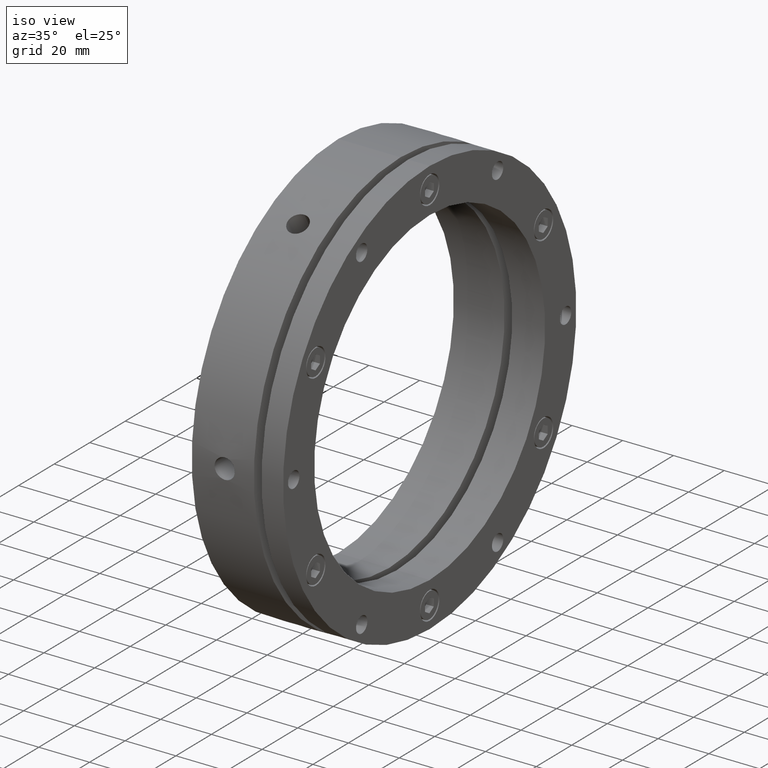
[diagram: clean part render]
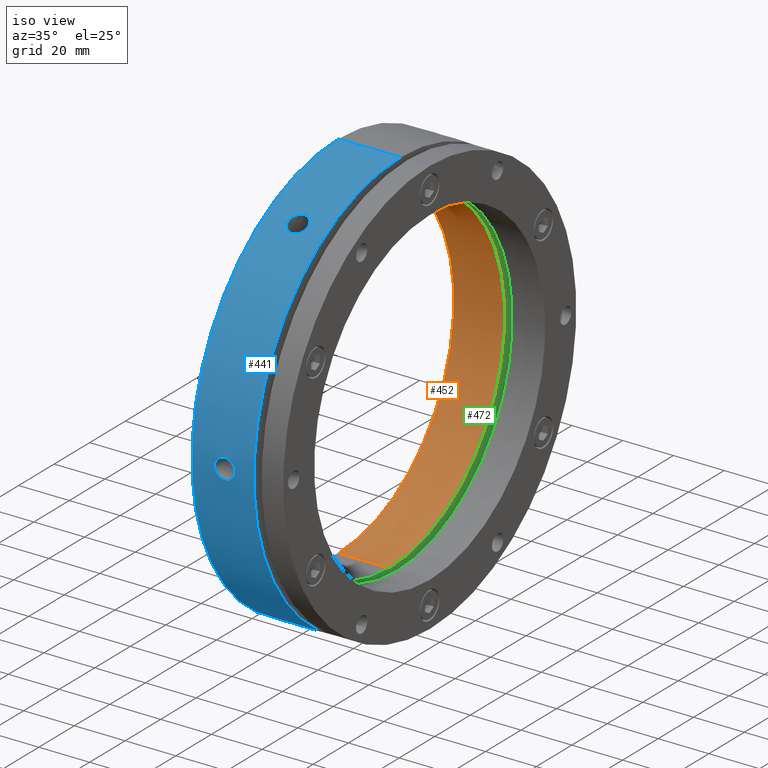
[diagram: same view with three faces highlighted in distinct colors, each labeled with its STEP entity id]
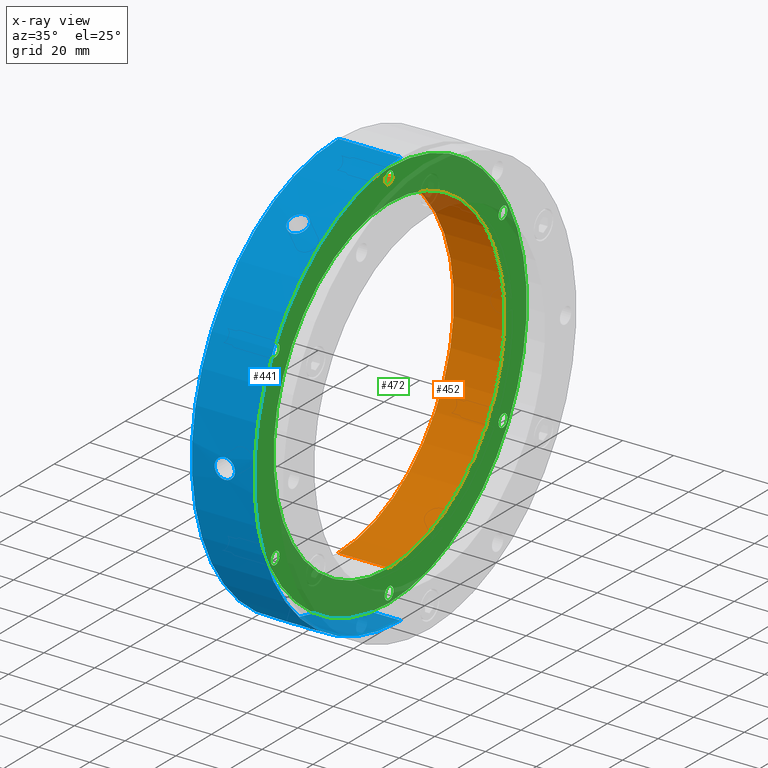
[diagram: x-ray of the same camera — body ghosted, the three highlighted faces saturated]
A machine part, iso view with three faces highlighted in distinct colors.
The next image is the same camera in x-ray (body ghosted, the three faces saturated) — at least one of them is partly hidden behind the body in this view.
Their STEP definitions:

[orange] entity #452 — the highlighted cylindrical surface (partial cylindrical patch) has radius 65 mm, axis along (1, 0, 0).
#49 = CIRCLE ( 'NONE', #2461, 65.00000000000000000 ) ;
#85 = CIRCLE ( 'NONE', #2489, 65.00000000000000000 ) ;
#158 = LINE ( 'NONE', #1758, #160 ) ;
#160 = VECTOR ( 'NONE', #1756, 1000.000000000000000 ) ;
#161 = LINE ( 'NONE', #1763, #163 ) ;
#163 = VECTOR ( 'NONE', #1759, 1000.000000000000000 ) ;
#452 = ADVANCED_FACE ( 'NONE', ( #3357 ), #3352, .F. ) ;
#1139 = CARTESIAN_POINT ( 'NONE',  ( -1.734723475976807100E-014, 0.0000000000000000000, 0.0000000000000000000 ) ) ;
#1140 = DIRECTION ( 'NONE',  ( 1.000000000000000000, 0.0000000000000000000, 0.0000000000000000000 ) ) ;
#1141 = DIRECTION ( 'NONE',  ( 0.0000000000000000000, 0.0000000000000000000, -1.000000000000000000 ) ) ;
#1267 = CARTESIAN_POINT ( 'NONE',  ( -1.734723475976807100E-014, 7.960204194457797300E-015, 65.00000000000000000 ) ) ;
#1270 = CARTESIAN_POINT ( 'NONE',  ( 19.99999999999998900, 0.0000000000000000000, -65.00000000000000000 ) ) ;
#1279 = CARTESIAN_POINT ( 'NONE',  ( 19.99999999999998900, 7.960204194457797300E-015, 65.00000000000000000 ) ) ;
#1293 = CARTESIAN_POINT ( 'NONE',  ( -1.734723475976807100E-014, 0.0000000000000000000, -65.00000000000000000 ) ) ;
#1363 = CARTESIAN_POINT ( 'NONE',  ( 19.99999999999998900, 0.0000000000000000000, 0.0000000000000000000 ) ) ;
#1364 = DIRECTION ( 'NONE',  ( -1.000000000000000000, -0.0000000000000000000, -0.0000000000000000000 ) ) ;
#1365 = DIRECTION ( 'NONE',  ( 0.0000000000000000000, 0.0000000000000000000, -1.000000000000000000 ) ) ;
#1756 = DIRECTION ( 'NONE',  ( 1.000000000000000000, 0.0000000000000000000, 0.0000000000000000000 ) ) ;
#1758 = CARTESIAN_POINT ( 'NONE',  ( 17.99999999999998600, 7.960204194457797300E-015, 65.00000000000000000 ) ) ;
#1759 = DIRECTION ( 'NONE',  ( 1.000000000000000000, 0.0000000000000000000, 0.0000000000000000000 ) ) ;
#1763 = CARTESIAN_POINT ( 'NONE',  ( 17.99999999999998600, 0.0000000000000000000, -65.00000000000000000 ) ) ;
#2461 = AXIS2_PLACEMENT_3D ( 'NONE', #1139, #1140, #1141 ) ;
#2489 = AXIS2_PLACEMENT_3D ( 'NONE', #1363, #1364, #1365 ) ;
#2896 = DIRECTION ( 'NONE',  ( 0.0000000000000000000, 0.0000000000000000000, -1.000000000000000000 ) ) ;
#2899 = DIRECTION ( 'NONE',  ( 1.000000000000000000, 0.0000000000000000000, 0.0000000000000000000 ) ) ;
#2901 = CARTESIAN_POINT ( 'NONE',  ( 17.99999999999998600, 0.0000000000000000000, 0.0000000000000000000 ) ) ;
#2993 = EDGE_CURVE ( 'NONE', #4068, #4042, #49, .T. ) ;
#3352 = CYLINDRICAL_SURFACE ( 'NONE', #3663, 65.00000000000000000 ) ;
#3357 = FACE_OUTER_BOUND ( 'NONE', #4401, .T. ) ;
#3663 = AXIS2_PLACEMENT_3D ( 'NONE', #2901, #2899, #2896 ) ;
#4042 = VERTEX_POINT ( 'NONE', #1267 ) ;
#4045 = VERTEX_POINT ( 'NONE', #1270 ) ;
#4054 = VERTEX_POINT ( 'NONE', #1279 ) ;
#4068 = VERTEX_POINT ( 'NONE', #1293 ) ;
#4206 = EDGE_CURVE ( 'NONE', #4054, #4045, #85, .T. ) ;
#4223 = ORIENTED_EDGE ( 'NONE', *, *, #2993, .F. ) ;
#4225 = ORIENTED_EDGE ( 'NONE', *, *, #4608, .F. ) ;
#4230 = ORIENTED_EDGE ( 'NONE', *, *, #4610, .T. ) ;
#4231 = ORIENTED_EDGE ( 'NONE', *, *, #4206, .F. ) ;
#4401 = EDGE_LOOP ( 'NONE', ( #4225, #4223, #4230, #4231 ) ) ;
#4608 = EDGE_CURVE ( 'NONE', #4042, #4054, #158, .T. ) ;
#4610 = EDGE_CURVE ( 'NONE', #4068, #4045, #161, .T. ) ;

[blue] entity #441 — the highlighted cylindrical surface (partial cylindrical patch) has radius 82.5 mm, axis along (1, 0, 0).
#42 = CIRCLE ( 'NONE', #3606, 82.50000000000000000 ) ;
#45 = CIRCLE ( 'NONE', #2463, 82.50000000000000000 ) ;
#122 = LINE ( 'NONE', #1606, #124 ) ;
#124 = VECTOR ( 'NONE', #1571, 1000.000000000000000 ) ;
#125 = LINE ( 'NONE', #1605, #127 ) ;
#127 = VECTOR ( 'NONE', #1604, 1000.000000000000000 ) ;
#441 = ADVANCED_FACE ( 'NONE', ( #3396, #3388, #3390, #3391 ), #3384, .T. ) ;
#1031 = CARTESIAN_POINT ( 'NONE',  ( 13.52586747911997200, -44.64362104395704700, -69.37722768999508100 ) ) ;
#1032 = CARTESIAN_POINT ( 'NONE',  ( 13.26088739101038200, -37.73738500852668700, 73.36306817955632200 ) ) ;
#1033 = CARTESIAN_POINT ( 'NONE',  ( 13.52586747911997400, -37.76063110169442900, 73.35112378598991300 ) ) ;
#1034 = CARTESIAN_POINT ( 'NONE',  ( 13.52586747911997600, -82.40425214565145500, 3.973896095994820900 ) ) ;
#1035 = CARTESIAN_POINT ( 'NONE',  ( -2.428612866367529900E-014, 0.0000000000000000000, 0.0000000000000000000 ) ) ;
#1036 = DIRECTION ( 'NONE',  ( 1.000000000000000000, 0.0000000000000000000, 0.0000000000000000000 ) ) ;
#1037 = DIRECTION ( 'NONE',  ( 0.0000000000000000000, 0.0000000000000000000, -1.000000000000000000 ) ) ;
#1038 = CARTESIAN_POINT ( 'NONE',  ( 12.99999999999998600, -37.73738500852668000, 73.36306817955630800 ) ) ;
#1039 = CARTESIAN_POINT ( 'NONE',  ( 14.03878403826417400, -37.85165367367365300, 73.30419453233307100 ) ) ;
#1040 = CARTESIAN_POINT ( 'NONE',  ( 14.28808482288021900, -37.91892314232467200, 73.26947069576506500 ) ) ;
#1041 = CARTESIAN_POINT ( 'NONE',  ( 14.77228998042611800, -38.09703930152346600, 73.17701595972108900 ) ) ;
#1042 = CARTESIAN_POINT ( 'NONE',  ( 15.00641666467783600, -38.20828548440106700, 73.11906680166271100 ) ) ;
#1043 = CARTESIAN_POINT ( 'NONE',  ( 15.43970132770177600, -38.46497928092114900, 72.98435708096506900 ) ) ;
#1044 = CARTESIAN_POINT ( 'NONE',  ( 15.64165632180189800, -38.61131840669706600, 72.90713943492842500 ) ) ;
#1045 = CARTESIAN_POINT ( 'NONE',  ( 16.01503396711840200, -38.94105820159089100, 72.73155350896709600 ) ) ;
#1046 = CARTESIAN_POINT ( 'NONE',  ( 16.18068840960625100, -39.11944729384502800, 72.63584370137128600 ) ) ;
#1047 = CARTESIAN_POINT ( 'NONE',  ( 16.47024997396227900, -39.50043612338392100, 72.42936209058052600 ) ) ;
#1048 = CARTESIAN_POINT ( 'NONE',  ( 16.59540160471279100, -39.70559565340968800, 72.31717928653455400 ) ) ;
#1049 = CARTESIAN_POINT ( 'NONE',  ( 16.79607608047037500, -40.12982664389839000, 72.08263147030298500 ) ) ;
#1050 = CARTESIAN_POINT ( 'NONE',  ( 16.87165782410273000, -40.34753630367228500, 71.96104494558929300 ) ) ;
#1051 = CARTESIAN_POINT ( 'NONE',  ( 16.97386396891283100, -40.79382279860307400, 71.70899313833271500 ) ) ;
#1052 = CARTESIAN_POINT ( 'NONE',  ( 17.00018214410179200, -41.02356243453139900, 71.57783979901677200 ) ) ;
#1053 = CARTESIAN_POINT ( 'NONE',  ( 16.99981593525871700, -41.48123831788002700, 71.31358000219066200 ) ) ;
#1054 = CARTESIAN_POINT ( 'NONE',  ( 16.97370876156826800, -41.70561246155953900, 71.18256258789341500 ) ) ;
#1055 = CARTESIAN_POINT ( 'NONE',  ( 16.87175363743378800, -42.14586722682429400, 70.92278338497475000 ) ) ;
#1056 = CARTESIAN_POINT ( 'NONE',  ( 16.79466222370711400, -42.36402007175215100, 70.79264390242916200 ) ) ;
#1057 = CARTESIAN_POINT ( 'NONE',  ( 16.59359452609553600, -42.77882803508700200, 70.54275653304463800 ) ) ;
#1058 = CARTESIAN_POINT ( 'NONE',  ( 16.47059898604408400, -42.97502912872112500, 70.42332085820329700 ) ) ;
#1059 = CARTESIAN_POINT ( 'NONE',  ( 16.18006751806962700, -43.34552932112504200, 70.19588547189478300 ) ) ;
#1060 = CARTESIAN_POINT ( 'NONE',  ( 16.01103147544243300, -43.52045307678358900, 70.08747521577726000 ) ) ;
#1061 = CARTESIAN_POINT ( 'NONE',  ( 15.64185061920910700, -43.83339677118416200, 69.89218372343684400 ) ) ;
#1062 = CARTESIAN_POINT ( 'NONE',  ( 15.44041744014144500, -43.97352100643874500, 69.80401724321122000 ) ) ;
#1063 = CARTESIAN_POINT ( 'NONE',  ( 15.00302057486554100, -44.22063805106420600, 69.64773178898944600 ) ) ;
#1064 = CARTESIAN_POINT ( 'NONE',  ( 14.77023854160540000, -44.32539240172857100, 69.58102851603388200 ) ) ;
#1065 = CARTESIAN_POINT ( 'NONE',  ( 14.28887398402855900, -44.49344490435905200, 69.47368783546116300 ) ) ;
#1066 = CARTESIAN_POINT ( 'NONE',  ( 14.03673672634487200, -44.55802610150921300, 69.43223271830223100 ) ) ;
#1067 = CARTESIAN_POINT ( 'NONE',  ( 13.52042634524121700, -44.64431745616855800, 69.37677961093392300 ) ) ;
#1068 = CARTESIAN_POINT ( 'NONE',  ( 13.26088722725592500, -44.66558823880219400, 69.36306817955629400 ) ) ;
#1069 = CARTESIAN_POINT ( 'NONE',  ( 12.99999999999998600, -44.66558823880218700, 69.36306817955630800 ) ) ;
#1070 = CARTESIAN_POINT ( 'NONE',  ( 13.26088739101038000, -82.40297324732891600, 4.000000000000027500 ) ) ;
#1071 = CARTESIAN_POINT ( 'NONE',  ( 12.99999999999998600, -82.40297324732890200, 4.000000000000028400 ) ) ;
#1072 = CARTESIAN_POINT ( 'NONE',  ( 14.03878403826417400, -82.40912150579362100, 3.871603609514591600 ) ) ;
#1073 = CARTESIAN_POINT ( 'NONE',  ( 14.28808482288022000, -82.41268451553436600, 3.795984622479714700 ) ) ;
#1074 = CARTESIAN_POINT ( 'NONE',  ( 14.77228998042611800, -82.42167444501950500, 3.595504135767052700 ) ) ;
#1075 = CARTESIAN_POINT ( 'NONE',  ( 15.00641666467783800, -82.42711209345183900, 3.470187536291822200 ) ) ;
#1076 = CARTESIAN_POINT ( 'NONE',  ( 15.43970132770177600, -82.43879695145096800, 3.180529327162732000 ) ) ;
#1077 = CARTESIAN_POINT ( 'NONE',  ( 15.64165632180188800, -82.44509407125076500, 3.015187103654862500 ) ) ;
#1078 = CARTESIAN_POINT ( 'NONE',  ( 16.01503396711839900, -82.45790209626817100, 2.641831101657478300 ) ) ;
#1079 = CARTESIAN_POINT ( 'NONE',  ( 16.18068840960624800, -82.46420951762596000, 2.439486712209450600 ) ) ;
#1080 = CARTESIAN_POINT ( 'NONE',  ( 16.47024997396227500, -82.47588561203627900, 2.006299901875288900 ) ) ;
#1081 = CARTESIAN_POINT ( 'NONE',  ( 16.59540160471279400, -82.48131221887757600, 1.772535135021523900 ) ) ;
#1082 = CARTESIAN_POINT ( 'NONE',  ( 16.79607608047036400, -82.49030334686318600, 1.287866412069880400 ) ) ;
#1083 = CARTESIAN_POINT ( 'NONE',  ( 16.87165782410273400, -82.49386115759024600, 1.038531053699556200 ) ) ;
#1084 = CARTESIAN_POINT ( 'NONE',  ( 16.97386396891283400, -82.49872113690166500, 0.5260097080953001200 ) ) ;
#1085 = CARTESIAN_POINT ( 'NONE',  ( 17.00018214410179200, -82.50000883122707800, 0.2614726774672174700 ) ) ;
#1086 = CARTESIAN_POINT ( 'NONE',  ( 16.99981593525871700, -82.49999107565102500, -0.2670161626252206500 ) ) ;
#1087 = CARTESIAN_POINT ( 'NONE',  ( 16.97370876156826800, -82.49871373837123700, -0.5268385781526897500 ) ) ;
#1088 = CARTESIAN_POINT ( 'NONE',  ( 16.87175363743378800, -82.49386573190118100, -1.037999990468451800 ) ) ;
#1089 = CARTESIAN_POINT ( 'NONE',  ( 16.79466222370711700, -82.49023805644525000, -1.291995637356609700 ) ) ;
#1090 = CARTESIAN_POINT ( 'NONE',  ( 16.59359452609554400, -82.48123322814082300, -1.776173555988961100 ) ) ;
#1091 = CARTESIAN_POINT ( 'NONE',  ( 16.47059898604408400, -82.47589944642715000, -2.005806524747064700 ) ) ;
#1092 = CARTESIAN_POINT ( 'NONE',  ( 16.18006751806962700, -82.46418472036641800, -2.440386796630115800 ) ) ;
#1093 = CARTESIAN_POINT ( 'NONE',  ( 16.01103147544243300, -82.45776056236711300, -2.646080340814571200 ) ) ;
#1094 = CARTESIAN_POINT ( 'NONE',  ( 15.64185061920910700, -82.44510501605768100, -3.014743276289840100 ) ) ;
#1095 = CARTESIAN_POINT ( 'NONE',  ( 15.44041744014144500, -82.43881272204728800, -3.180177663818985100 ) ) ;
#1096 = CARTESIAN_POINT ( 'NONE',  ( 15.00302057486553800, -82.42702407076195900, -3.472330029283654500 ) ) ;
#1097 = CARTESIAN_POINT ( 'NONE',  ( 14.77023854160540500, -82.42163451719905300, -3.596401594593729500 ) ) ;
#1098 = CARTESIAN_POINT ( 'NONE',  ( 14.28887398402855900, -82.41270101227880200, -3.795609671327635900 ) ) ;
#1099 = CARTESIAN_POINT ( 'NONE',  ( 14.03673672634487900, -82.40909042627737300, -3.872266187245951000 ) ) ;
#1100 = CARTESIAN_POINT ( 'NONE',  ( 13.52042634524121700, -82.40421230390735700, -3.974723246192049900 ) ) ;
#1101 = CARTESIAN_POINT ( 'NONE',  ( 13.26088722725592500, -82.40297324732888700, -3.999999999999972500 ) ) ;
#1102 = CARTESIAN_POINT ( 'NONE',  ( 12.99999999999998600, -82.40297324732890200, -3.999999999999971600 ) ) ;
#1103 = CARTESIAN_POINT ( 'NONE',  ( 13.26088739101038200, -44.66558823880224300, -69.36306817955627900 ) ) ;
#1104 = CARTESIAN_POINT ( 'NONE',  ( 12.99999999999998600, -44.66558823880222900, -69.36306817955627900 ) ) ;
#1105 = CARTESIAN_POINT ( 'NONE',  ( 14.03878403826416800, -44.55746783211996800, -69.43259092281850500 ) ) ;
#1106 = CARTESIAN_POINT ( 'NONE',  ( 14.28808482288021900, -44.49376137320969300, -69.47348607328534300 ) ) ;
#1107 = CARTESIAN_POINT ( 'NONE',  ( 14.77228998042611800, -44.32463514349603200, -69.58151182395403100 ) ) ;
#1108 = CARTESIAN_POINT ( 'NONE',  ( 15.00641666467783800, -44.21882660905077200, -69.64887926537089400 ) ) ;
#1109 = CARTESIAN_POINT ( 'NONE',  ( 15.43970132770177500, -43.97381767052984700, -69.80382775380231000 ) ) ;
#1110 = CARTESIAN_POINT ( 'NONE',  ( 15.64165632180188800, -43.83377566455372000, -69.89195233127354400 ) ) ;
#1111 = CARTESIAN_POINT ( 'NONE',  ( 16.01503396711838800, -43.51684389467730100, -70.08972240730962300 ) ) ;
#1112 = CARTESIAN_POINT ( 'NONE',  ( 16.18068840960624800, -43.34476222378094700, -70.19635698916184200 ) ) ;
#1113 = CARTESIAN_POINT ( 'NONE',  ( 16.47024997396227500, -42.97544948865237300, -70.42306218870524500 ) ) ;
#1114 = CARTESIAN_POINT ( 'NONE',  ( 16.59540160471279400, -42.77571656546791000, -70.54464415151304000 ) ) ;
#1115 = CARTESIAN_POINT ( 'NONE',  ( 16.79607608047036400, -42.36047670296483900, -70.79476505823312500 ) ) ;
#1116 = CARTESIAN_POINT ( 'NONE',  ( 16.87165782410273400, -42.14632485391796000, -70.92251389188973600 ) ) ;
#1117 = CARTESIAN_POINT ( 'NONE',  ( 16.97386396891283400, -41.70489833829860500, -71.18298343023740000 ) ) ;
#1118 = CARTESIAN_POINT ( 'NONE',  ( 17.00018214410179200, -41.47644639669569200, -71.31636712154956100 ) ) ;
#1119 = CARTESIAN_POINT ( 'NONE',  ( 16.99981593525872000, -41.01875275777105400, -71.58059616481587300 ) ) ;
#1120 = CARTESIAN_POINT ( 'NONE',  ( 16.97370876156826500, -40.79310127681171100, -71.70940116604609200 ) ) ;
#1121 = CARTESIAN_POINT ( 'NONE',  ( 16.87175363743379500, -40.34799850507691600, -71.96078337544321400 ) ) ;
#1122 = CARTESIAN_POINT ( 'NONE',  ( 16.79466222370711700, -40.12621798469314200, -72.08463953978575500 ) ) ;
#1123 = CARTESIAN_POINT ( 'NONE',  ( 16.59359452609554400, -39.70240519305383500, -72.31893008903360000 ) ) ;
#1124 = CARTESIAN_POINT ( 'NONE',  ( 16.47059898604408800, -39.50087031770605300, -72.42912738295035500 ) ) ;
#1125 = CARTESIAN_POINT ( 'NONE',  ( 16.18006751806963100, -39.11865539924141200, -72.63627226852490500 ) ) ;
#1126 = CARTESIAN_POINT ( 'NONE',  ( 16.01103147544243300, -38.93730748558356700, -72.73355555659183800 ) ) ;
#1127 = CARTESIAN_POINT ( 'NONE',  ( 15.64185061920911400, -38.61170824487351200, -72.90692699972669300 ) ) ;
#1128 = CARTESIAN_POINT ( 'NONE',  ( 15.44041744014145200, -38.46529171560855800, -72.98419490703020100 ) ) ;
#1129 = CARTESIAN_POINT ( 'NONE',  ( 15.00302057486554500, -38.20638601969776700, -73.12006181827311500 ) ) ;
#1130 = CARTESIAN_POINT ( 'NONE',  ( 14.77023854160540500, -38.09624211547050300, -73.17743011062762500 ) ) ;
#1131 = CARTESIAN_POINT ( 'NONE',  ( 14.28887398402856100, -37.91925610791977900, -73.26929750678880300 ) ) ;
#1132 = CARTESIAN_POINT ( 'NONE',  ( 14.03673672634487900, -37.85106432476820300, -73.30449890554817200 ) ) ;
#1133 = CARTESIAN_POINT ( 'NONE',  ( 13.52042634524121700, -37.75989484773880600, -73.35150285712597900 ) ) ;
#1134 = CARTESIAN_POINT ( 'NONE',  ( 13.26088722725592600, -37.73738500852672900, -73.36306817955629400 ) ) ;
#1135 = CARTESIAN_POINT ( 'NONE',  ( 12.99999999999998600, -37.73738500852672200, -73.36306817955629400 ) ) ;
#1136 = CARTESIAN_POINT ( 'NONE',  ( 24.49999999999998600, 0.0000000000000000000, 0.0000000000000000000 ) ) ;
#1137 = DIRECTION ( 'NONE',  ( -1.000000000000000000, -0.0000000000000000000, -0.0000000000000000000 ) ) ;
#1138 = DIRECTION ( 'NONE',  ( 0.0000000000000000000, 0.0000000000000000000, -1.000000000000000000 ) ) ;
#1273 = CARTESIAN_POINT ( 'NONE',  ( 12.99999999999998600, -82.40297324732890200, -3.999999999999971600 ) ) ;
#1278 = CARTESIAN_POINT ( 'NONE',  ( 24.49999999999998600, 1.010333609296566400E-014, 82.50000000000000000 ) ) ;
#1285 = CARTESIAN_POINT ( 'NONE',  ( 12.99999999999998600, -44.66558823880218700, 69.36306817955630800 ) ) ;
#1288 = CARTESIAN_POINT ( 'NONE',  ( 12.99999999999998600, -37.73738500852672200, -73.36306817955629400 ) ) ;
#1289 = CARTESIAN_POINT ( 'NONE',  ( -2.428612866367529900E-014, 1.010333609296566400E-014, 82.50000000000000000 ) ) ;
#1291 = CARTESIAN_POINT ( 'NONE',  ( 12.99999999999998600, -82.40297324732890200, 4.000000000000028400 ) ) ;
#1295 = CARTESIAN_POINT ( 'NONE',  ( 12.99999999999998600, -37.73738500852668000, 73.36306817955630800 ) ) ;
#1302 = CARTESIAN_POINT ( 'NONE',  ( 24.49999999999998600, 0.0000000000000000000, -82.50000000000000000 ) ) ;
#1306 = CARTESIAN_POINT ( 'NONE',  ( -2.428612866367529900E-014, 0.0000000000000000000, -82.50000000000000000 ) ) ;
#1313 = CARTESIAN_POINT ( 'NONE',  ( 12.99999999999998600, -44.66558823880222900, -69.36306817955627900 ) ) ;
#1571 = DIRECTION ( 'NONE',  ( 1.000000000000000000, 0.0000000000000000000, 0.0000000000000000000 ) ) ;
#1604 = DIRECTION ( 'NONE',  ( 1.000000000000000000, 0.0000000000000000000, 0.0000000000000000000 ) ) ;
#1605 = CARTESIAN_POINT ( 'NONE',  ( 17.99999999999998200, 0.0000000000000000000, -82.50000000000000000 ) ) ;
#1606 = CARTESIAN_POINT ( 'NONE',  ( 17.99999999999998200, 1.010333609296566400E-014, 82.50000000000000000 ) ) ;
#1615 = CARTESIAN_POINT ( 'NONE',  ( 12.73911277281556300, -44.66558823880218700, 69.36306817955629400 ) ) ;
#1619 = CARTESIAN_POINT ( 'NONE',  ( 12.99999999999998600, -44.66558823880218700, 69.36306817955630800 ) ) ;
#1621 = CARTESIAN_POINT ( 'NONE',  ( 12.47413285204512900, -44.64362107189145200, 69.37722767197290400 ) ) ;
#1622 = CARTESIAN_POINT ( 'NONE',  ( 11.96121659683880600, -44.55746796648691800, 69.43259083654361100 ) ) ;
#1623 = CARTESIAN_POINT ( 'NONE',  ( 11.71191595552422100, -44.49376158581371500, 69.47348593694346200 ) ) ;
#1624 = CARTESIAN_POINT ( 'NONE',  ( 11.22771106552859700, -44.32463556811539700, 69.58151155328310700 ) ) ;
#1625 = CARTESIAN_POINT ( 'NONE',  ( 10.99358447954440300, -44.21882715772757400, 69.64887891667390800 ) ) ;
#1626 = CARTESIAN_POINT ( 'NONE',  ( 10.56029997683219400, -43.97381850654755200, 69.80382722679114200 ) ) ;
#1627 = CARTESIAN_POINT ( 'NONE',  ( 10.35834504520718500, -43.83377666567901800, 69.89195170280028400 ) ) ;
#1628 = CARTESIAN_POINT ( 'NONE',  ( 9.984967479452848200, -43.51684528178422800, 70.08972154549087500 ) ) ;
#1629 = CARTESIAN_POINT ( 'NONE',  ( 9.819312993987486100, -43.34476376606793500, 70.19635603612874800 ) ) ;
#1630 = CARTESIAN_POINT ( 'NONE',  ( 9.529751349926900900, -42.97545142505045800, 70.42306100632316700 ) ) ;
#1631 = CARTESIAN_POINT ( 'NONE',  ( 9.404599654761872400, -42.77571873220544100, 70.54464283697639400 ) ) ;
#1632 = CARTESIAN_POINT ( 'NONE',  ( 9.203924928324802600, -42.36047922977420700, 70.79476354559835700 ) ) ;
#1633 = CARTESIAN_POINT ( 'NONE',  ( 9.128343034989988800, -42.14632756769233900, 70.92251227840223700 ) ) ;
#1634 = CARTESIAN_POINT ( 'NONE',  ( 9.026136519798889400, -41.70490144565459200, 71.18298160889003200 ) ) ;
#1635 = CARTESIAN_POINT ( 'NONE',  ( 8.999818115850835900, -41.47645001866131100, 71.31636501585317900 ) ) ;
#1636 = CARTESIAN_POINT ( 'NONE',  ( 9.000183799278248700, -41.01875602767052700, 71.58059429180059400 ) ) ;
#1637 = CARTESIAN_POINT ( 'NONE',  ( 9.026290755414198200, -40.79310437623517100, 71.70939940359211600 ) ) ;
#1638 = CARTESIAN_POINT ( 'NONE',  ( 9.128245502268150300, -40.34800127014332800, 71.96078182578914100 ) ) ;
#1639 = CARTESIAN_POINT ( 'NONE',  ( 9.205336748599497900, -40.12622058964720400, 72.08463809055494700 ) ) ;
#1640 = CARTESIAN_POINT ( 'NONE',  ( 9.406404230870039700, -39.70240737437053700, 72.31892889233660100 ) ) ;
#1641 = CARTESIAN_POINT ( 'NONE',  ( 9.529399696776025100, -39.50087230221682700, 72.42912630129586700 ) ) ;
#1642 = CARTESIAN_POINT ( 'NONE',  ( 9.819931064881416200, -39.11865701180636300, 72.63627140071112400 ) ) ;
#1643 = CARTESIAN_POINT ( 'NONE',  ( 9.988967104343199600, -38.93730889646285200, 72.73355480182544900 ) ) ;
#1644 = CARTESIAN_POINT ( 'NONE',  ( 10.35814802147791300, -38.61170928540080600, 72.90692644919551000 ) ) ;
#1645 = CARTESIAN_POINT ( 'NONE',  ( 10.55958125335340700, -38.46529259228535100, 72.98419444532116500 ) ) ;
#1646 = CARTESIAN_POINT ( 'NONE',  ( 10.99697826180004000, -38.20638660497872500, 73.12006151278508500 ) ) ;
#1647 = CARTESIAN_POINT ( 'NONE',  ( 11.22976042569435900, -38.09624255633885100, 73.17742988127686500 ) ) ;
#1648 = CARTESIAN_POINT ( 'NONE',  ( 11.71112523659748200, -37.91925633330704000, 73.26929739030902100 ) ) ;
#1649 = CARTESIAN_POINT ( 'NONE',  ( 11.96326262753319400, -37.85106446839896700, 73.30449883142941300 ) ) ;
#1650 = CARTESIAN_POINT ( 'NONE',  ( 12.47957332906759500, -37.75989487570961200, 73.35150284277270300 ) ) ;
#1651 = CARTESIAN_POINT ( 'NONE',  ( 12.73911260906110200, -37.73738500852668000, 73.36306817955630800 ) ) ;
#1652 = CARTESIAN_POINT ( 'NONE',  ( 12.99999999999998600, -37.73738500852668000, 73.36306817955630800 ) ) ;
#1656 = CARTESIAN_POINT ( 'NONE',  ( 12.73911277281556700, -82.40297324732890200, -3.999999999999972500 ) ) ;
#1660 = CARTESIAN_POINT ( 'NONE',  ( 12.99999999999998600, -82.40297324732890200, -3.999999999999971600 ) ) ;
#1662 = CARTESIAN_POINT ( 'NONE',  ( 12.47413285204512900, -82.40425214401096800, -3.973896129197785700 ) ) ;
#1663 = CARTESIAN_POINT ( 'NONE',  ( 11.96121659683880800, -82.40912149826085900, -3.871603769017203600 ) ) ;
#1664 = CARTESIAN_POINT ( 'NONE',  ( 11.71191595552422300, -82.41268450376084300, -3.795984874771111800 ) ) ;
#1665 = CARTESIAN_POINT ( 'NONE',  ( 11.22771106552859700, -82.42167442292129900, -3.595504638833660200 ) ) ;
#1666 = CARTESIAN_POINT ( 'NONE',  ( 10.99358447954440100, -82.42711206580978000, -3.470188185808360100 ) ) ;
#1667 = CARTESIAN_POINT ( 'NONE',  ( 10.56029997683219400, -82.43879691305475900, -3.180530314680881000 ) ) ;
#1668 = CARTESIAN_POINT ( 'NONE',  ( 10.35834504520718200, -82.44509402753963900, -3.015188284891421800 ) ) ;
#1669 = CARTESIAN_POINT ( 'NONE',  ( 9.984967479452855300, -82.45790204346472800, -2.641832733836694500 ) ) ;
#1670 = CARTESIAN_POINT ( 'NONE',  ( 9.819312993987489700, -82.46420946341859800, -2.439488524385702300 ) ) ;
#1671 = CARTESIAN_POINT ( 'NONE',  ( 9.529751349926902600, -82.47588555626239800, -2.006302170036266200 ) ) ;
#1672 = CARTESIAN_POINT ( 'NONE',  ( 9.404599654761876000, -82.48131216382422800, -1.772537668739578600 ) ) ;
#1673 = CARTESIAN_POINT ( 'NONE',  ( 9.203924928324800800, -82.49030330028777800, -1.287869356668346600 ) ) ;
#1674 = CARTESIAN_POINT ( 'NONE',  ( 9.128343034989985200, -82.49386111715625700, -1.038534210640860400 ) ) ;
#1675 = CARTESIAN_POINT ( 'NONE',  ( 9.026136519798889400, -82.49872111324656000, -0.5260133098182127000 ) ) ;
#1676 = CARTESIAN_POINT ( 'NONE',  ( 8.999818115850835900, -82.50000881862330000, -0.2614768670296471200 ) ) ;
#1677 = CARTESIAN_POINT ( 'NONE',  ( 9.000183799278248700, -82.49999108852193800, 0.2670123943015756400 ) ) ;
#1678 = CARTESIAN_POINT ( 'NONE',  ( 9.026290755414198200, -82.49871376175302400, 0.5268350127462614300 ) ) ;
#1679 = CARTESIAN_POINT ( 'NONE',  ( 9.128245502268150300, -82.49386577239459900, 1.037996821023678700 ) ) ;
#1680 = CARTESIAN_POINT ( 'NONE',  ( 9.205336748599496100, -82.49023810385156700, 1.291992656784815500 ) ) ;
#1681 = CARTESIAN_POINT ( 'NONE',  ( 9.406404230870039700, -82.48123328242920100, 1.776171068564798700 ) ) ;
#1682 = CARTESIAN_POINT ( 'NONE',  ( 9.529399696776028600, -82.47589950194228000, 2.005804265283073200 ) ) ;
#1683 = CARTESIAN_POINT ( 'NONE',  ( 9.819931064881410900, -82.46418477510008000, 2.440384966201004000 ) ) ;
#1684 = CARTESIAN_POINT ( 'NONE',  ( 9.988967104343203100, -82.45776061415988100, 2.646078741574076100 ) ) ;
#1685 = CARTESIAN_POINT ( 'NONE',  ( 10.35814802147791600, -82.44510505954733000, 3.014742099901177100 ) ) ;
#1686 = CARTESIAN_POINT ( 'NONE',  ( 10.55958125335340500, -82.43881276053392100, 3.180176673740096500 ) ) ;
#1687 = CARTESIAN_POINT ( 'NONE',  ( 10.99697826180004000, -82.42702409884205400, 3.472329369671487000 ) ) ;
#1688 = CARTESIAN_POINT ( 'NONE',  ( 11.22976042569435900, -82.42163453900963100, 3.596401098115160600 ) ) ;
#1689 = CARTESIAN_POINT ( 'NONE',  ( 11.71112523659747900, -82.41270102409801300, 3.795609417896662400 ) ) ;
#1690 = CARTESIAN_POINT ( 'NONE',  ( 11.96326262753319700, -82.40909043390404100, 3.872266025798684300 ) ) ;
#1691 = CARTESIAN_POINT ( 'NONE',  ( 12.47957332906759100, -82.40421230546240800, 3.974723214791982400 ) ) ;
#1692 = CARTESIAN_POINT ( 'NONE',  ( 12.73911260906110400, -82.40297324732890200, 4.000000000000030200 ) ) ;
#1693 = CARTESIAN_POINT ( 'NONE',  ( 12.99999999999998600, -82.40297324732890200, 4.000000000000028400 ) ) ;
#1697 = CARTESIAN_POINT ( 'NONE',  ( 12.73911277281556300, -37.73738500852672900, -73.36306817955630800 ) ) ;
#1701 = CARTESIAN_POINT ( 'NONE',  ( 12.99999999999998600, -37.73738500852672200, -73.36306817955629400 ) ) ;
#1703 = CARTESIAN_POINT ( 'NONE',  ( 12.47413285204512900, -37.76063107211958000, -73.35112380117071500 ) ) ;
#1704 = CARTESIAN_POINT ( 'NONE',  ( 11.96121659683880600, -37.85165353177395500, -73.30419460556085200 ) ) ;
#1705 = CARTESIAN_POINT ( 'NONE',  ( 11.71191595552422100, -37.91892291794714300, -73.26947081171458400 ) ) ;
#1706 = CARTESIAN_POINT ( 'NONE',  ( 11.22771106552859500, -38.09703885480590900, -73.17701619211676700 ) ) ;
#1707 = CARTESIAN_POINT ( 'NONE',  ( 10.99358447954439900, -38.20828490808223400, -73.11906710248227600 ) ) ;
#1708 = CARTESIAN_POINT ( 'NONE',  ( 10.56029997683219300, -38.46497840650722800, -72.98435754147205000 ) ) ;
#1709 = CARTESIAN_POINT ( 'NONE',  ( 10.35834504520717800, -38.61131736186060700, -72.90713998769172100 ) ) ;
#1710 = CARTESIAN_POINT ( 'NONE',  ( 9.984967479452851800, -38.94105676168050000, -72.73155427932758200 ) ) ;
#1711 = CARTESIAN_POINT ( 'NONE',  ( 9.819312993987489700, -39.11944569735065600, -72.63584456051447100 ) ) ;
#1712 = CARTESIAN_POINT ( 'NONE',  ( 9.529751349926904400, -39.50043413121195400, -72.42936317635943100 ) ) ;
#1713 = CARTESIAN_POINT ( 'NONE',  ( 9.404599654761874200, -39.70559343161878000, -72.31718050571599600 ) ) ;
#1714 = CARTESIAN_POINT ( 'NONE',  ( 9.203924928324800800, -40.12982407051360000, -72.08263290226669500 ) ) ;
#1715 = CARTESIAN_POINT ( 'NONE',  ( 9.128343034989987000, -40.34753354946394700, -71.96104648904309900 ) ) ;
#1716 = CARTESIAN_POINT ( 'NONE',  ( 9.026136519798889400, -40.79381966759198300, -71.70899491870822800 ) ) ;
#1717 = CARTESIAN_POINT ( 'NONE',  ( 8.999818115850835900, -41.02355879996201800, -71.57784188288282200 ) ) ;
#1718 = CARTESIAN_POINT ( 'NONE',  ( 9.000183799278250500, -41.48123506085146800, -71.31358189749904900 ) ) ;
#1719 = CARTESIAN_POINT ( 'NONE',  ( 9.026290755414200000, -41.70560938551786700, -71.18256439084584000 ) ) ;
#1720 = CARTESIAN_POINT ( 'NONE',  ( 9.128245502268155700, -42.14586450225130000, -70.92278500476547300 ) ) ;
#1721 = CARTESIAN_POINT ( 'NONE',  ( 9.205336748599494400, -42.36401751420439200, -70.79264543377013300 ) ) ;
#1722 = CARTESIAN_POINT ( 'NONE',  ( 9.406404230870046800, -42.77882590805867800, -70.54275782377179400 ) ) ;
#1723 = CARTESIAN_POINT ( 'NONE',  ( 9.529399696776030400, -42.97502719972546700, -70.42332203601279200 ) ) ;
#1724 = CARTESIAN_POINT ( 'NONE',  ( 9.819931064881421500, -43.34552776329375200, -70.19588643451010100 ) ) ;
#1725 = CARTESIAN_POINT ( 'NONE',  ( 9.988967104343201300, -43.52045171769705700, -70.08747606025137600 ) ) ;
#1726 = CARTESIAN_POINT ( 'NONE',  ( 10.35814802147791400, -43.83339577414652400, -69.89218434929432500 ) ) ;
#1727 = CARTESIAN_POINT ( 'NONE',  ( 10.55958125335340700, -43.97352016824857700, -69.80401777158110100 ) ) ;
#1728 = CARTESIAN_POINT ( 'NONE',  ( 10.99697826180004000, -44.22063749386333600, -69.64773214311361500 ) ) ;
#1729 = CARTESIAN_POINT ( 'NONE',  ( 11.22976042569436200, -44.32539198267080100, -69.58102878316167100 ) ) ;
#1730 = CARTESIAN_POINT ( 'NONE',  ( 11.71112523659748600, -44.49344469079099400, -69.47368797241237800 ) ) ;
#1731 = CARTESIAN_POINT ( 'NONE',  ( 11.96326262753319500, -44.55802596550509500, -69.43223280563071900 ) ) ;
#1732 = CARTESIAN_POINT ( 'NONE',  ( 12.47957332906759100, -44.64431742975281000, -69.37677962798071000 ) ) ;
#1733 = CARTESIAN_POINT ( 'NONE',  ( 12.73911260906110800, -44.66558823880222900, -69.36306817955627900 ) ) ;
#1734 = CARTESIAN_POINT ( 'NONE',  ( 12.99999999999998600, -44.66558823880222900, -69.36306817955627900 ) ) ;
#2463 = AXIS2_PLACEMENT_3D ( 'NONE', #1136, #1137, #1138 ) ;
#2828 = DIRECTION ( 'NONE',  ( 0.0000000000000000000, 0.0000000000000000000, -1.000000000000000000 ) ) ;
#2829 = CARTESIAN_POINT ( 'NONE',  ( 17.99999999999998200, 0.0000000000000000000, 0.0000000000000000000 ) ) ;
#2831 = DIRECTION ( 'NONE',  ( 1.000000000000000000, 0.0000000000000000000, 0.0000000000000000000 ) ) ;
#2982 = EDGE_CURVE ( 'NONE', #4064, #4081, #42, .T. ) ;
#2985 = EDGE_CURVE ( 'NONE', #4070, #4060, #4546, .T. ) ;
#2987 = EDGE_CURVE ( 'NONE', #4066, #4048, #4543, .T. ) ;
#2989 = EDGE_CURVE ( 'NONE', #4088, #4063, #4552, .T. ) ;
#2991 = EDGE_CURVE ( 'NONE', #4077, #4053, #45, .T. ) ;
#3384 = CYLINDRICAL_SURFACE ( 'NONE', #3682, 82.50000000000000000 ) ;
#3388 = FACE_BOUND ( 'NONE', #4379, .T. ) ;
#3390 = FACE_BOUND ( 'NONE', #4380, .T. ) ;
#3391 = FACE_BOUND ( 'NONE', #4381, .T. ) ;
#3396 = FACE_OUTER_BOUND ( 'NONE', #4382, .T. ) ;
#3606 = AXIS2_PLACEMENT_3D ( 'NONE', #1035, #1036, #1037 ) ;
#3682 = AXIS2_PLACEMENT_3D ( 'NONE', #2829, #2831, #2828 ) ;
#4048 = VERTEX_POINT ( 'NONE', #1273 ) ;
#4053 = VERTEX_POINT ( 'NONE', #1278 ) ;
#4060 = VERTEX_POINT ( 'NONE', #1285 ) ;
#4063 = VERTEX_POINT ( 'NONE', #1288 ) ;
#4064 = VERTEX_POINT ( 'NONE', #1289 ) ;
#4066 = VERTEX_POINT ( 'NONE', #1291 ) ;
#4070 = VERTEX_POINT ( 'NONE', #1295 ) ;
#4077 = VERTEX_POINT ( 'NONE', #1302 ) ;
#4081 = VERTEX_POINT ( 'NONE', #1306 ) ;
#4088 = VERTEX_POINT ( 'NONE', #1313 ) ;
#4379 = EDGE_LOOP ( 'NONE', ( #4444, #4443 ) ) ;
#4380 = EDGE_LOOP ( 'NONE', ( #4442, #4441 ) ) ;
#4381 = EDGE_LOOP ( 'NONE', ( #4440, #4439 ) ) ;
#4382 = EDGE_LOOP ( 'NONE', ( #4448, #4447, #4446, #4445 ) ) ;
#4439 = ORIENTED_EDGE ( 'NONE', *, *, #2989, .T. ) ;
#4440 = ORIENTED_EDGE ( 'NONE', *, *, #4596, .T. ) ;
#4441 = ORIENTED_EDGE ( 'NONE', *, *, #2987, .T. ) ;
#4442 = ORIENTED_EDGE ( 'NONE', *, *, #4592, .T. ) ;
#4443 = ORIENTED_EDGE ( 'NONE', *, *, #2985, .T. ) ;
#4444 = ORIENTED_EDGE ( 'NONE', *, *, #4588, .T. ) ;
#4445 = ORIENTED_EDGE ( 'NONE', *, *, #2991, .T. ) ;
#4446 = ORIENTED_EDGE ( 'NONE', *, *, #4585, .T. ) ;
#4447 = ORIENTED_EDGE ( 'NONE', *, *, #2982, .T. ) ;
#4448 = ORIENTED_EDGE ( 'NONE', *, *, #4583, .F. ) ;
#4543 = B_SPLINE_CURVE_WITH_KNOTS ( 'NONE', 3,
 ( #1071, #1070, #1034, #1072, #1073, #1074, #1075, #1076, #1077, #1078, #1079, #1080, #1081, #1082, #1083, #1084, #1085, #1086, #1087, #1088, #1089, #1090, #1091, #1092, #1093, #1094, #1095, #1096, #1097, #1098, #1099, #1100, #1101, #1102 ),
 .UNSPECIFIED., .F., .F.,
 ( 4, 2, 2, 2, 2, 2, 2, 2, 2, 2, 2, 2, 2, 2, 2, 2, 4 ),
 ( 0.006255252861593778300, 0.007036818393353181900, 0.007818383925112585400, 0.008599949456871989000, 0.009381514988631392500, 0.01016308052039079600, 0.01094464605215020000, 0.01172621158390960300, 0.01250777711566900700, 0.01328934264742841000, 0.01407090817918781400, 0.01485247371094721700, 0.01563403924270662100, 0.01641560477446602600, 0.01719717030622542800, 0.01797873583798483000, 0.01876030136974423500 ),
 .UNSPECIFIED. ) ;
#4546 = B_SPLINE_CURVE_WITH_KNOTS ( 'NONE', 3,
 ( #1038, #1032, #1033, #1039, #1040, #1041, #1042, #1043, #1044, #1045, #1046, #1047, #1048, #1049, #1050, #1051, #1052, #1053, #1054, #1055, #1056, #1057, #1058, #1059, #1060, #1061, #1062, #1063, #1064, #1065, #1066, #1067, #1068, #1069 ),
 .UNSPECIFIED., .F., .F.,
 ( 4, 2, 2, 2, 2, 2, 2, 2, 2, 2, 2, 2, 2, 2, 2, 2, 4 ),
 ( 0.006255252861593767900, 0.007036818393353172300, 0.007818383925112576800, 0.008599949456871980300, 0.009381514988631385600, 0.01016308052039078900, 0.01094464605215019300, 0.01172621158390959800, 0.01250777711566900200, 0.01328934264742840500, 0.01407090817918781000, 0.01485247371094721400, 0.01563403924270661800, 0.01641560477446602300, 0.01719717030622542500, 0.01797873583798483000, 0.01876030136974423500 ),
 .UNSPECIFIED. ) ;
#4548 = B_SPLINE_CURVE_WITH_KNOTS ( 'NONE', 3,
 ( #1660, #1656, #1662, #1663, #1664, #1665, #1666, #1667, #1668, #1669, #1670, #1671, #1672, #1673, #1674, #1675, #1676, #1677, #1678, #1679, #1680, #1681, #1682, #1683, #1684, #1685, #1686, #1687, #1688, #1689, #1690, #1691, #1692, #1693 ),
 .UNSPECIFIED., .F., .F.,
 ( 4, 2, 2, 2, 2, 2, 2, 2, 2, 2, 2, 2, 2, 2, 2, 2, 4 ),
 ( 0.01876030136974423500, 0.01954186690128939900, 0.02032343243283455900, 0.02110499796437972200, 0.02188656349592488200, 0.02266812902747004600, 0.02344969455901520600, 0.02423126009056036900, 0.02501282562210553300, 0.02579439115365069600, 0.02657595668519585600, 0.02735752221674102000, 0.02813908774828618000, 0.02892065327983134300, 0.02970221881137650300, 0.03048378434292166700, 0.03126534987446683000 ),
 .UNSPECIFIED. ) ;
#4550 = B_SPLINE_CURVE_WITH_KNOTS ( 'NONE', 3,
 ( #1701, #1697, #1703, #1704, #1705, #1706, #1707, #1708, #1709, #1710, #1711, #1712, #1713, #1714, #1715, #1716, #1717, #1718, #1719, #1720, #1721, #1722, #1723, #1724, #1725, #1726, #1727, #1728, #1729, #1730, #1731, #1732, #1733, #1734 ),
 .UNSPECIFIED., .F., .F.,
 ( 4, 2, 2, 2, 2, 2, 2, 2, 2, 2, 2, 2, 2, 2, 2, 2, 4 ),
 ( 0.01876030136974421100, 0.01954186690128937100, 0.02032343243283453400, 0.02110499796437969400, 0.02188656349592485800, 0.02266812902747001800, 0.02344969455901518100, 0.02423126009056034100, 0.02501282562210550100, 0.02579439115365066500, 0.02657595668519582800, 0.02735752221674098800, 0.02813908774828614800, 0.02892065327983130800, 0.02970221881137647200, 0.03048378434292163500, 0.03126534987446679500 ),
 .UNSPECIFIED. ) ;
#4552 = B_SPLINE_CURVE_WITH_KNOTS ( 'NONE', 3,
 ( #1104, #1103, #1031, #1105, #1106, #1107, #1108, #1109, #1110, #1111, #1112, #1113, #1114, #1115, #1116, #1117, #1118, #1119, #1120, #1121, #1122, #1123, #1124, #1125, #1126, #1127, #1128, #1129, #1130, #1131, #1132, #1133, #1134, #1135 ),
 .UNSPECIFIED., .F., .F.,
 ( 4, 2, 2, 2, 2, 2, 2, 2, 2, 2, 2, 2, 2, 2, 2, 2, 4 ),
 ( 0.006255252861593760100, 0.007036818393353162800, 0.007818383925112566300, 0.008599949456871969900, 0.009381514988631371700, 0.01016308052039077700, 0.01094464605215017900, 0.01172621158390958100, 0.01250777711566898600, 0.01328934264742838800, 0.01407090817918779300, 0.01485247371094719500, 0.01563403924270659700, 0.01641560477446600200, 0.01719717030622540400, 0.01797873583798480600, 0.01876030136974421100 ),
 .UNSPECIFIED. ) ;
#4556 = B_SPLINE_CURVE_WITH_KNOTS ( 'NONE', 3,
 ( #1619, #1615, #1621, #1622, #1623, #1624, #1625, #1626, #1627, #1628, #1629, #1630, #1631, #1632, #1633, #1634, #1635, #1636, #1637, #1638, #1639, #1640, #1641, #1642, #1643, #1644, #1645, #1646, #1647, #1648, #1649, #1650, #1651, #1652 ),
 .UNSPECIFIED., .F., .F.,
 ( 4, 2, 2, 2, 2, 2, 2, 2, 2, 2, 2, 2, 2, 2, 2, 2, 4 ),
 ( 0.01876030136974423500, 0.01954186690128939900, 0.02032343243283456200, 0.02110499796437972200, 0.02188656349592488600, 0.02266812902747004900, 0.02344969455901520900, 0.02423126009056037300, 0.02501282562210553600, 0.02579439115365070000, 0.02657595668519586300, 0.02735752221674102300, 0.02813908774828618700, 0.02892065327983135000, 0.02970221881137651000, 0.03048378434292167400, 0.03126534987446683700 ),
 .UNSPECIFIED. ) ;
#4583 = EDGE_CURVE ( 'NONE', #4064, #4053, #122, .T. ) ;
#4585 = EDGE_CURVE ( 'NONE', #4081, #4077, #125, .T. ) ;
#4588 = EDGE_CURVE ( 'NONE', #4060, #4070, #4556, .T. ) ;
#4592 = EDGE_CURVE ( 'NONE', #4048, #4066, #4548, .T. ) ;
#4596 = EDGE_CURVE ( 'NONE', #4063, #4088, #4550, .T. ) ;

[green] entity #472 — the highlighted planar face has unit normal (-1, 0, 0).
#68 = CIRCLE ( 'NONE', #2524, 2.458500000000002600 ) ;
#69 = CIRCLE ( 'NONE', #2528, 2.458500000000002600 ) ;
#70 = CIRCLE ( 'NONE', #2526, 2.458500000000002600 ) ;
#71 = CIRCLE ( 'NONE', #2520, 2.458500000000002600 ) ;
#72 = CIRCLE ( 'NONE', #2473, 2.458500000000002600 ) ;
#76 = CIRCLE ( 'NONE', #2479, 77.50000000000000000 ) ;
#85 = CIRCLE ( 'NONE', #2489, 65.00000000000000000 ) ;
#156 = CIRCLE ( 'NONE', #2462, 65.00000000000000000 ) ;
#159 = CIRCLE ( 'NONE', #4534, 2.458500000000002600 ) ;
#165 = CIRCLE ( 'NONE', #4494, 2.458500000000002600 ) ;
#472 = ADVANCED_FACE ( 'NONE', ( #2623, #2689, #2660, #2646, #2681, #2685, #2684, #2697 ), #3016, .F. ) ;
#541 = CARTESIAN_POINT ( 'NONE',  ( 19.99999999999997900, 0.0000000000000000000, 77.50000000000000000 ) ) ;
#542 = CARTESIAN_POINT ( 'NONE',  ( 19.99999999999997900, 9.491012693391988200E-015, -77.50000000000000000 ) ) ;
#551 = CARTESIAN_POINT ( 'NONE',  ( 19.99999999999998900, -64.08587988004848100, -36.99999999999998600 ) ) ;
#552 = DIRECTION ( 'NONE',  ( -1.000000000000000000, 0.0000000000000000000, 0.0000000000000000000 ) ) ;
#553 = DIRECTION ( 'NONE',  ( 0.0000000000000000000, 0.0000000000000000000, 1.000000000000000000 ) ) ;
#561 = CARTESIAN_POINT ( 'NONE',  ( 19.99999999999998900, -1.332268000000000100E-014, -74.00000000000000000 ) ) ;
#562 = DIRECTION ( 'NONE',  ( -1.000000000000000000, 0.0000000000000000000, 0.0000000000000000000 ) ) ;
#563 = DIRECTION ( 'NONE',  ( 0.0000000000000000000, 0.0000000000000000000, 1.000000000000000000 ) ) ;
#571 = CARTESIAN_POINT ( 'NONE',  ( 19.99999999999998900, 64.08587988004843800, -37.00000000000003600 ) ) ;
#572 = DIRECTION ( 'NONE',  ( -1.000000000000000000, 0.0000000000000000000, 0.0000000000000000000 ) ) ;
#573 = DIRECTION ( 'NONE',  ( 0.0000000000000000000, 0.0000000000000000000, 1.000000000000000000 ) ) ;
#581 = CARTESIAN_POINT ( 'NONE',  ( 19.99999999999998900, 64.08587988004850900, 36.99999999999995000 ) ) ;
#582 = DIRECTION ( 'NONE',  ( -1.000000000000000000, 0.0000000000000000000, 0.0000000000000000000 ) ) ;
#583 = DIRECTION ( 'NONE',  ( 0.0000000000000000000, 0.0000000000000000000, 1.000000000000000000 ) ) ;
#690 = CARTESIAN_POINT ( 'NONE',  ( 19.99999999999997900, 0.0000000000000000000, 0.0000000000000000000 ) ) ;
#691 = DIRECTION ( 'NONE',  ( -1.000000000000000000, 0.0000000000000000000, 0.0000000000000000000 ) ) ;
#692 = DIRECTION ( 'NONE',  ( 0.0000000000000000000, 0.0000000000000000000, 1.000000000000000000 ) ) ;
#912 = CARTESIAN_POINT ( 'NONE',  ( 19.99999999999998900, 0.0000000000000000000, 74.00000000000000000 ) ) ;
#913 = DIRECTION ( 'NONE',  ( -1.000000000000000000, 0.0000000000000000000, 0.0000000000000000000 ) ) ;
#914 = DIRECTION ( 'NONE',  ( 0.0000000000000000000, 0.0000000000000000000, 1.000000000000000000 ) ) ;
#1199 = CARTESIAN_POINT ( 'NONE',  ( 19.99999999999998900, 64.08587988004850900, 36.99999999999995000 ) ) ;
#1200 = DIRECTION ( 'NONE',  ( -1.000000000000000000, 0.0000000000000000000, 0.0000000000000000000 ) ) ;
#1201 = DIRECTION ( 'NONE',  ( 0.0000000000000000000, 0.0000000000000000000, 1.000000000000000000 ) ) ;
#1202 = CARTESIAN_POINT ( 'NONE',  ( 19.99999999999998900, 64.08587988004843800, -37.00000000000003600 ) ) ;
#1203 = DIRECTION ( 'NONE',  ( -1.000000000000000000, 0.0000000000000000000, 0.0000000000000000000 ) ) ;
#1204 = DIRECTION ( 'NONE',  ( 0.0000000000000000000, 0.0000000000000000000, 1.000000000000000000 ) ) ;
#1206 = CARTESIAN_POINT ( 'NONE',  ( 19.99999999999998900, -1.332268000000000100E-014, -74.00000000000000000 ) ) ;
#1207 = DIRECTION ( 'NONE',  ( -1.000000000000000000, 0.0000000000000000000, 0.0000000000000000000 ) ) ;
#1208 = DIRECTION ( 'NONE',  ( 0.0000000000000000000, 0.0000000000000000000, 1.000000000000000000 ) ) ;
#1211 = CARTESIAN_POINT ( 'NONE',  ( 19.99999999999998900, -64.08587988004848100, -36.99999999999998600 ) ) ;
#1212 = DIRECTION ( 'NONE',  ( -1.000000000000000000, 0.0000000000000000000, 0.0000000000000000000 ) ) ;
#1213 = DIRECTION ( 'NONE',  ( 0.0000000000000000000, 0.0000000000000000000, 1.000000000000000000 ) ) ;
#1216 = CARTESIAN_POINT ( 'NONE',  ( 19.99999999999998900, -64.08587988004845200, 37.00000000000001400 ) ) ;
#1217 = DIRECTION ( 'NONE',  ( -1.000000000000000000, 0.0000000000000000000, 0.0000000000000000000 ) ) ;
#1218 = DIRECTION ( 'NONE',  ( 0.0000000000000000000, 0.0000000000000000000, 1.000000000000000000 ) ) ;
#1248 = CARTESIAN_POINT ( 'NONE',  ( 19.99999999999998900, 64.08587988004850900, 39.45849999999995100 ) ) ;
#1251 = CARTESIAN_POINT ( 'NONE',  ( 19.99999999999998900, 64.08587988004850900, 34.54149999999994900 ) ) ;
#1252 = CARTESIAN_POINT ( 'NONE',  ( 19.99999999999998900, 64.08587988004843800, -34.54150000000002800 ) ) ;
#1255 = CARTESIAN_POINT ( 'NONE',  ( 19.99999999999998900, 64.08587988004843800, -39.45850000000003600 ) ) ;
#1256 = CARTESIAN_POINT ( 'NONE',  ( 19.99999999999998900, -1.332268000000000100E-014, -71.54149999999999900 ) ) ;
#1259 = CARTESIAN_POINT ( 'NONE',  ( 19.99999999999998900, -1.302160058442962400E-014, -76.45850000000000100 ) ) ;
#1260 = CARTESIAN_POINT ( 'NONE',  ( 19.99999999999998900, -64.08587988004848100, -34.54149999999998500 ) ) ;
#1263 = CARTESIAN_POINT ( 'NONE',  ( 19.99999999999998900, -64.08587988004848100, -39.45849999999998700 ) ) ;
#1264 = CARTESIAN_POINT ( 'NONE',  ( 19.99999999999998900, -64.08587988004845200, 34.54150000000000600 ) ) ;
#1270 = CARTESIAN_POINT ( 'NONE',  ( 19.99999999999998900, 0.0000000000000000000, -65.00000000000000000 ) ) ;
#1279 = CARTESIAN_POINT ( 'NONE',  ( 19.99999999999998900, 7.960204194457797300E-015, 65.00000000000000000 ) ) ;
#1280 = CARTESIAN_POINT ( 'NONE',  ( 19.99999999999998900, -64.08587988004845200, 39.45850000000001500 ) ) ;
#1281 = CARTESIAN_POINT ( 'NONE',  ( 19.99999999999998900, 0.0000000000000000000, 76.45850000000000100 ) ) ;
#1282 = CARTESIAN_POINT ( 'NONE',  ( 19.99999999999998900, 3.010794155703764200E-016, 71.54149999999999900 ) ) ;
#1338 = CARTESIAN_POINT ( 'NONE',  ( 19.99999999999997900, 0.0000000000000000000, 0.0000000000000000000 ) ) ;
#1339 = DIRECTION ( 'NONE',  ( -1.000000000000000000, 0.0000000000000000000, 0.0000000000000000000 ) ) ;
#1340 = DIRECTION ( 'NONE',  ( 0.0000000000000000000, 0.0000000000000000000, 1.000000000000000000 ) ) ;
#1363 = CARTESIAN_POINT ( 'NONE',  ( 19.99999999999998900, 0.0000000000000000000, 0.0000000000000000000 ) ) ;
#1364 = DIRECTION ( 'NONE',  ( -1.000000000000000000, -0.0000000000000000000, -0.0000000000000000000 ) ) ;
#1365 = DIRECTION ( 'NONE',  ( 0.0000000000000000000, 0.0000000000000000000, -1.000000000000000000 ) ) ;
#1765 = CARTESIAN_POINT ( 'NONE',  ( 19.99999999999998900, 0.0000000000000000000, 0.0000000000000000000 ) ) ;
#1766 = DIRECTION ( 'NONE',  ( -1.000000000000000000, -0.0000000000000000000, -0.0000000000000000000 ) ) ;
#1767 = DIRECTION ( 'NONE',  ( 0.0000000000000000000, 0.0000000000000000000, -1.000000000000000000 ) ) ;
#1770 = CARTESIAN_POINT ( 'NONE',  ( 19.99999999999998900, 0.0000000000000000000, 74.00000000000000000 ) ) ;
#1771 = DIRECTION ( 'NONE',  ( -1.000000000000000000, 0.0000000000000000000, 0.0000000000000000000 ) ) ;
#1772 = DIRECTION ( 'NONE',  ( 0.0000000000000000000, 0.0000000000000000000, 1.000000000000000000 ) ) ;
#1780 = CARTESIAN_POINT ( 'NONE',  ( 19.99999999999998900, -64.08587988004845200, 37.00000000000001400 ) ) ;
#1781 = DIRECTION ( 'NONE',  ( -1.000000000000000000, 0.0000000000000000000, 0.0000000000000000000 ) ) ;
#1782 = DIRECTION ( 'NONE',  ( 0.0000000000000000000, 0.0000000000000000000, 1.000000000000000000 ) ) ;
#2379 = VERTEX_POINT ( 'NONE', #541 ) ;
#2380 = VERTEX_POINT ( 'NONE', #542 ) ;
#2462 = AXIS2_PLACEMENT_3D ( 'NONE', #1765, #1766, #1767 ) ;
#2473 = AXIS2_PLACEMENT_3D ( 'NONE', #1216, #1217, #1218 ) ;
#2479 = AXIS2_PLACEMENT_3D ( 'NONE', #1338, #1339, #1340 ) ;
#2489 = AXIS2_PLACEMENT_3D ( 'NONE', #1363, #1364, #1365 ) ;
#2501 = EDGE_CURVE ( 'NONE', #4038, #4035, #4666, .T. ) ;
#2506 = EDGE_CURVE ( 'NONE', #4034, #4031, #4658, .T. ) ;
#2511 = EDGE_CURVE ( 'NONE', #4030, #4027, #4653, .T. ) ;
#2517 = EDGE_CURVE ( 'NONE', #4026, #4023, #4647, .T. ) ;
#2520 = AXIS2_PLACEMENT_3D ( 'NONE', #1211, #1212, #1213 ) ;
#2524 = AXIS2_PLACEMENT_3D ( 'NONE', #1199, #1200, #1201 ) ;
#2526 = AXIS2_PLACEMENT_3D ( 'NONE', #1206, #1207, #1208 ) ;
#2528 = AXIS2_PLACEMENT_3D ( 'NONE', #1202, #1203, #1204 ) ;
#2568 = EDGE_CURVE ( 'NONE', #2380, #2379, #3843, .T. ) ;
#2623 = FACE_BOUND ( 'NONE', #3465, .T. ) ;
#2646 = FACE_BOUND ( 'NONE', #3464, .T. ) ;
#2660 = FACE_BOUND ( 'NONE', #3471, .T. ) ;
#2681 = FACE_BOUND ( 'NONE', #3466, .T. ) ;
#2684 = FACE_BOUND ( 'NONE', #4378, .T. ) ;
#2685 = FACE_BOUND ( 'NONE', #3467, .T. ) ;
#2689 = FACE_BOUND ( 'NONE', #3470, .T. ) ;
#2697 = FACE_OUTER_BOUND ( 'NONE', #4424, .T. ) ;
#2876 = EDGE_CURVE ( 'NONE', #4056, #4057, #4747, .T. ) ;
#3010 = DIRECTION ( 'NONE',  ( -1.000000000000000000, 0.0000000000000000000, 0.0000000000000000000 ) ) ;
#3012 = CARTESIAN_POINT ( 'NONE',  ( 19.99999999999998900, 38.75000000000000000, 0.0000000000000000000 ) ) ;
#3016 = PLANE ( 'NONE',  #3632 ) ;
#3019 = DIRECTION ( 'NONE',  ( 0.0000000000000000000, 0.0000000000000000000, 1.000000000000000000 ) ) ;
#3039 = EDGE_CURVE ( 'NONE', #4023, #4026, #68, .T. ) ;
#3042 = EDGE_CURVE ( 'NONE', #4027, #4030, #69, .T. ) ;
#3044 = EDGE_CURVE ( 'NONE', #4031, #4034, #70, .T. ) ;
#3047 = EDGE_CURVE ( 'NONE', #4035, #4038, #71, .T. ) ;
#3049 = EDGE_CURVE ( 'NONE', #4055, #4039, #72, .T. ) ;
#3464 = EDGE_LOOP ( 'NONE', ( #4306, #4478 ) ) ;
#3465 = EDGE_LOOP ( 'NONE', ( #4281, #4296 ) ) ;
#3466 = EDGE_LOOP ( 'NONE', ( #4275, #4480 ) ) ;
#3467 = EDGE_LOOP ( 'NONE', ( #4254, #4488 ) ) ;
#3470 = EDGE_LOOP ( 'NONE', ( #4269, #4235 ) ) ;
#3471 = EDGE_LOOP ( 'NONE', ( #4274, #4347 ) ) ;
#3632 = AXIS2_PLACEMENT_3D ( 'NONE', #3012, #3010, #3019 ) ;
#3637 = AXIS2_PLACEMENT_3D ( 'NONE', #912, #913, #914 ) ;
#3660 = AXIS2_PLACEMENT_3D ( 'NONE', #690, #691, #692 ) ;
#3714 = AXIS2_PLACEMENT_3D ( 'NONE', #581, #582, #583 ) ;
#3728 = AXIS2_PLACEMENT_3D ( 'NONE', #551, #552, #553 ) ;
#3757 = AXIS2_PLACEMENT_3D ( 'NONE', #561, #562, #563 ) ;
#3777 = AXIS2_PLACEMENT_3D ( 'NONE', #571, #572, #573 ) ;
#3843 = CIRCLE ( 'NONE', #3660, 77.50000000000000000 ) ;
#4023 = VERTEX_POINT ( 'NONE', #1248 ) ;
#4026 = VERTEX_POINT ( 'NONE', #1251 ) ;
#4027 = VERTEX_POINT ( 'NONE', #1252 ) ;
#4030 = VERTEX_POINT ( 'NONE', #1255 ) ;
#4031 = VERTEX_POINT ( 'NONE', #1256 ) ;
#4034 = VERTEX_POINT ( 'NONE', #1259 ) ;
#4035 = VERTEX_POINT ( 'NONE', #1260 ) ;
#4038 = VERTEX_POINT ( 'NONE', #1263 ) ;
#4039 = VERTEX_POINT ( 'NONE', #1264 ) ;
#4045 = VERTEX_POINT ( 'NONE', #1270 ) ;
#4054 = VERTEX_POINT ( 'NONE', #1279 ) ;
#4055 = VERTEX_POINT ( 'NONE', #1280 ) ;
#4056 = VERTEX_POINT ( 'NONE', #1281 ) ;
#4057 = VERTEX_POINT ( 'NONE', #1282 ) ;
#4199 = EDGE_CURVE ( 'NONE', #2379, #2380, #76, .T. ) ;
#4206 = EDGE_CURVE ( 'NONE', #4054, #4045, #85, .T. ) ;
#4235 = ORIENTED_EDGE ( 'NONE', *, *, #4611, .T. ) ;
#4253 = ORIENTED_EDGE ( 'NONE', *, *, #3039, .T. ) ;
#4254 = ORIENTED_EDGE ( 'NONE', *, *, #3042, .T. ) ;
#4269 = ORIENTED_EDGE ( 'NONE', *, *, #2876, .T. ) ;
#4274 = ORIENTED_EDGE ( 'NONE', *, *, #3049, .T. ) ;
#4275 = ORIENTED_EDGE ( 'NONE', *, *, #3044, .T. ) ;
#4281 = ORIENTED_EDGE ( 'NONE', *, *, #4609, .T. ) ;
#4296 = ORIENTED_EDGE ( 'NONE', *, *, #4206, .T. ) ;
#4306 = ORIENTED_EDGE ( 'NONE', *, *, #3047, .T. ) ;
#4347 = ORIENTED_EDGE ( 'NONE', *, *, #4615, .T. ) ;
#4371 = ORIENTED_EDGE ( 'NONE', *, *, #2568, .F. ) ;
#4378 = EDGE_LOOP ( 'NONE', ( #4253, #4484 ) ) ;
#4424 = EDGE_LOOP ( 'NONE', ( #4451, #4371 ) ) ;
#4451 = ORIENTED_EDGE ( 'NONE', *, *, #4199, .F. ) ;
#4478 = ORIENTED_EDGE ( 'NONE', *, *, #2501, .T. ) ;
#4480 = ORIENTED_EDGE ( 'NONE', *, *, #2506, .T. ) ;
#4484 = ORIENTED_EDGE ( 'NONE', *, *, #2517, .T. ) ;
#4488 = ORIENTED_EDGE ( 'NONE', *, *, #2511, .T. ) ;
#4494 = AXIS2_PLACEMENT_3D ( 'NONE', #1780, #1781, #1782 ) ;
#4534 = AXIS2_PLACEMENT_3D ( 'NONE', #1770, #1771, #1772 ) ;
#4609 = EDGE_CURVE ( 'NONE', #4045, #4054, #156, .T. ) ;
#4611 = EDGE_CURVE ( 'NONE', #4057, #4056, #159, .T. ) ;
#4615 = EDGE_CURVE ( 'NONE', #4039, #4055, #165, .T. ) ;
#4647 = CIRCLE ( 'NONE', #3714, 2.458500000000002600 ) ;
#4653 = CIRCLE ( 'NONE', #3777, 2.458500000000002600 ) ;
#4658 = CIRCLE ( 'NONE', #3757, 2.458500000000002600 ) ;
#4666 = CIRCLE ( 'NONE', #3728, 2.458500000000002600 ) ;
#4747 = CIRCLE ( 'NONE', #3637, 2.458500000000002600 ) ;